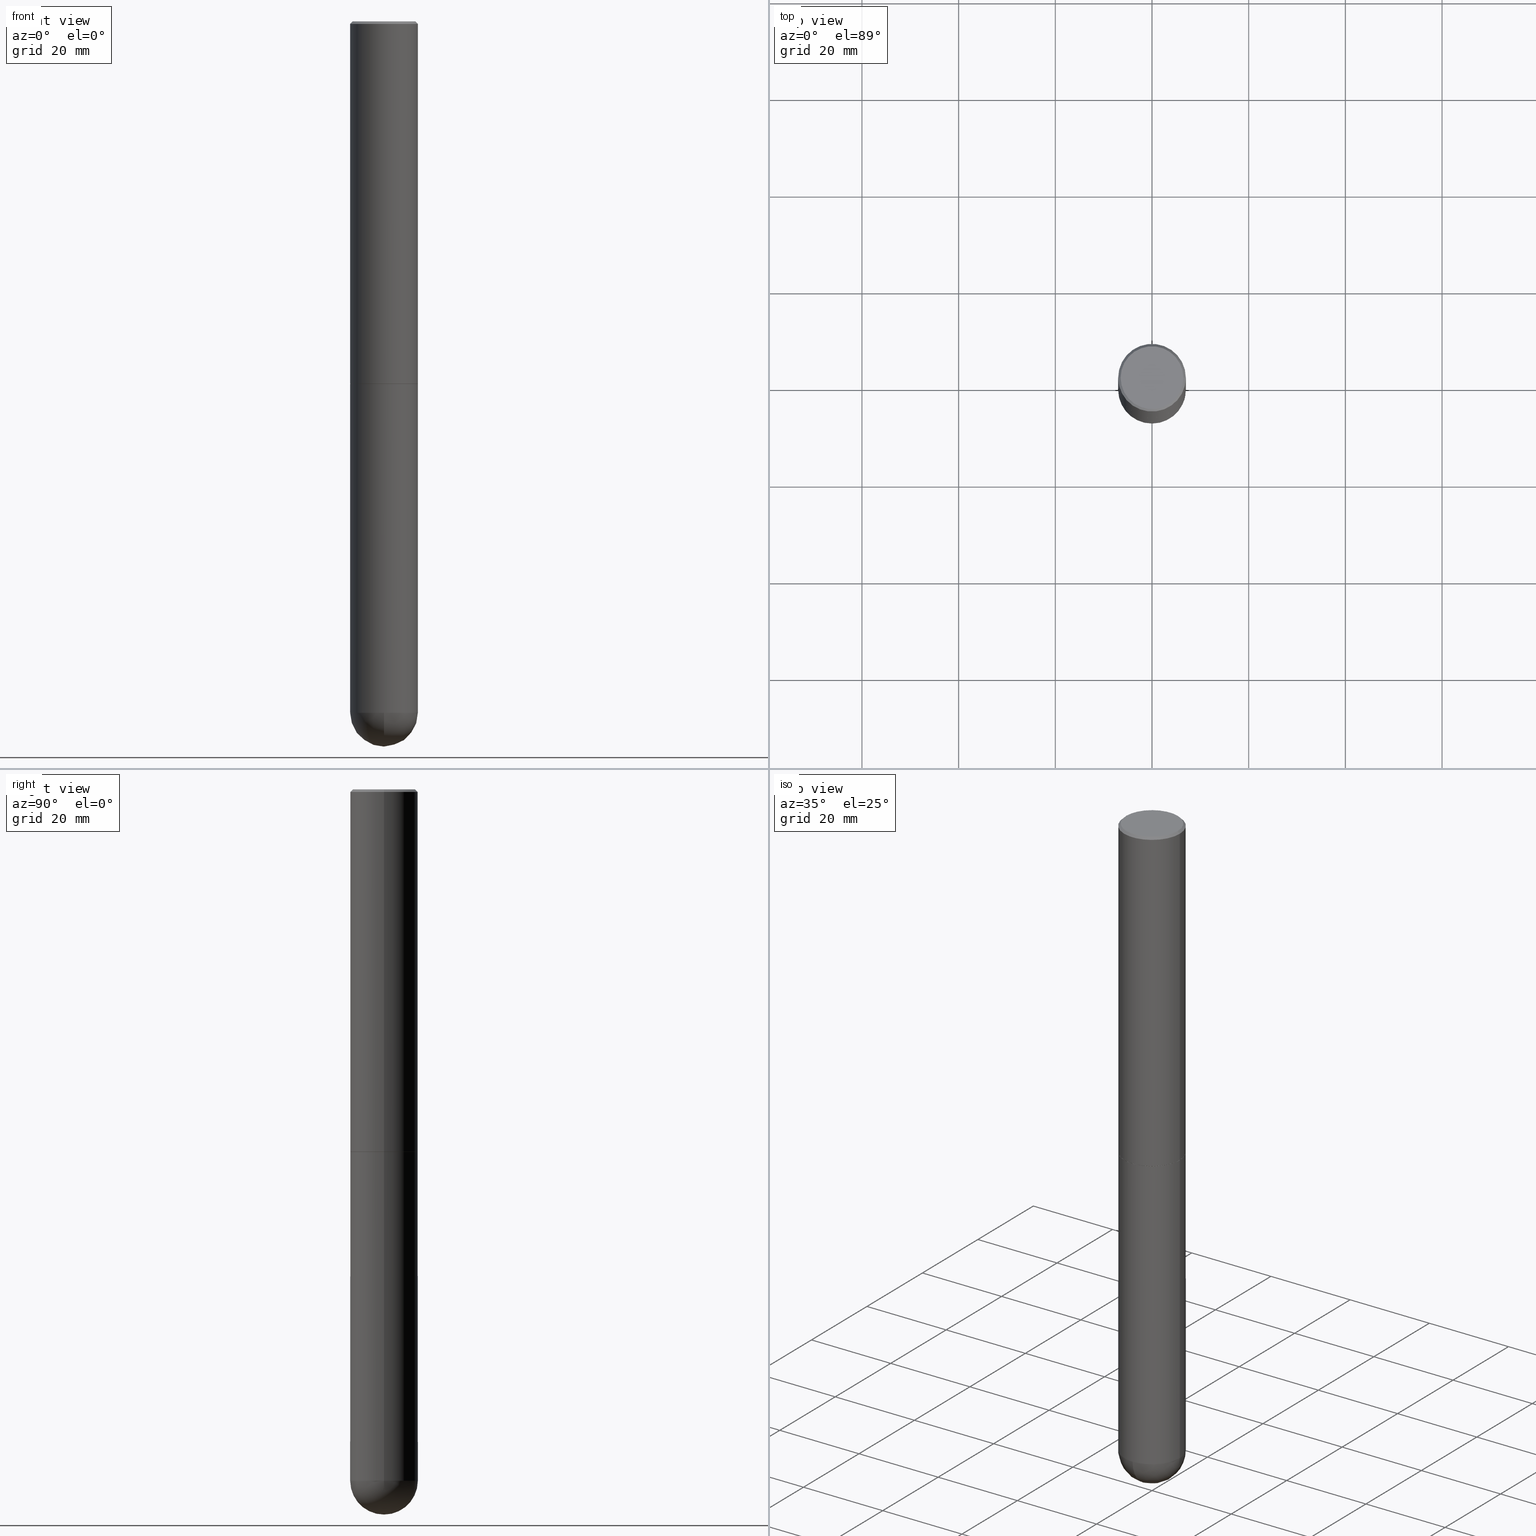
[diagram: canonical four-view strip — front | top / right | iso, engineering-drawing reading convention]
A machine part, canonical four-view strip (front | top / right | iso — engineering-drawing reading convention). The complete STEP part file that produces these views, byte-faithful:
ISO-10303-21;
HEADER;
FILE_DESCRIPTION (( 'STEP AP203' ),
    '1' );
FILE_NAME ('49591.STEP',
    '2024-04-10T12:29:19',
    ( '' ),
    ( '' ),
    'SwSTEP 2.0',
    'SolidWorks 2023',
    '' );
FILE_SCHEMA (( 'CONFIG_CONTROL_DESIGN' ));
ENDSEC;

DATA;
#1 = DIRECTION ( 'NONE',  ( -2.445468806185136597E-29, 3.491481338843145583E-15, 1.000000000000000000 ) ) ;
#2 = DIRECTION ( 'NONE',  ( 1.000000000000000000, -6.982962677686262766E-15, 0.000000000000000000 ) ) ;
#3 = EDGE_LOOP ( 'NONE', ( #60, #239, #39, #123 ) ) ;
#4 = CONICAL_SURFACE ( 'NONE', #355, 0.2756000000000000116, 0.7853981633974467247 ) ;
#5 = CYLINDRICAL_SURFACE ( 'NONE', #341, 0.2756000000000000671 ) ;
#6 = CARTESIAN_POINT ( 'NONE',  ( 0.2746000000000000107, -1.222681850049480396E-14, -2.952700000000000546 ) ) ;
#7 = EDGE_CURVE ( 'NONE', #316, #222, #266, .T. ) ;
#8 = CIRCLE ( 'NONE', #143, 0.2756000000000000671 ) ;
#9 = EDGE_CURVE ( 'NONE', #295, #367, #131, .T. ) ;
#10 = DIRECTION ( 'NONE',  ( 1.000000000000000000, -6.982962677686267499E-15, 4.876943595080614416E-29 ) ) ;
#11 = AXIS2_PLACEMENT_3D ( 'NONE', #343, #336, #54 ) ;
#12 = CC_DESIGN_PERSON_AND_ORGANIZATION_ASSIGNMENT ( #83, #17, ( #328 ) ) ;
#13 = COORDINATED_UNIVERSAL_TIME_OFFSET ( 5, 0, .BEHIND. ) ;
#14 = ORIENTED_EDGE ( 'NONE', *, *, #41, .F. ) ;
#15 = CIRCLE ( 'NONE', #119, 0.2756000000000000116 ) ;
#16 = VERTEX_POINT ( 'NONE', #103 ) ;
#17 = PERSON_AND_ORGANIZATION_ROLE ( 'design_owner' ) ;
#18 = SHAPE_DEFINITION_REPRESENTATION ( #166, #402 ) ;
#19 = DIRECTION ( 'NONE',  ( -1.000000000000000000, 6.982962677686265922E-15, -4.883557194083112901E-29 ) ) ;
#20 = DATE_TIME_ROLE ( 'creation_date' ) ;
#21 = PRODUCT_DEFINITION_FORMATION_WITH_SPECIFIED_SOURCE ( 'ANY', '', #328, .NOT_KNOWN. ) ;
#22 = EDGE_CURVE ( 'NONE', #386, #161, #96, .T. ) ;
#23 = VECTOR ( 'NONE', #358, 39.37007874015748143 ) ;
#24 = CARTESIAN_POINT ( 'NONE',  ( 0.2746000000000000107, -1.222681850049480396E-14, -2.952700000000000546 ) ) ;
#25 = APPROVAL ( #55, 'UNSPECIFIED' ) ;
#26 = LINE ( 'NONE', #149, #218 ) ;
#27 = CARTESIAN_POINT ( 'NONE',  ( -0.2756000000000000671, 1.958255779754836589E-15, -1.355658510874252287E-29 ) ) ;
#28 = LINE ( 'NONE', #244, #153 ) ;
#29 = ORIENTED_EDGE ( 'NONE', *, *, #47, .F. ) ;
#30 = DIRECTION ( 'NONE',  ( 1.000000000000000000, -6.982962677686267499E-15, 4.876176775795935793E-29 ) ) ;
#31 = SPHERICAL_SURFACE ( 'NONE', #364, 0.2756000000000000671 ) ;
#32 = CIRCLE ( 'NONE', #405, 0.2756000000000000116 ) ;
#33 = PLANE ( 'NONE',  #236 ) ;
#34 = ORIENTED_EDGE ( 'NONE', *, *, #279, .F. ) ;
#35 = APPLICATION_CONTEXT ( 'configuration controlled 3d designs of mechanical parts and assemblies' ) ;
#36 = ORIENTED_EDGE ( 'NONE', *, *, #198, .T. ) ;
#37 = DIRECTION ( 'NONE',  ( -2.445468806185136597E-29, 3.491481338843145583E-15, 1.000000000000000000 ) ) ;
#38 = DIRECTION ( 'NONE',  ( -2.445468806185136877E-29, 3.491481338843145188E-15, 1.000000000000000000 ) ) ;
#39 = ORIENTED_EDGE ( 'NONE', *, *, #286, .T. ) ;
#40 = APPROVAL_PERSON_ORGANIZATION ( #238, #128, #403 ) ;
#41 = EDGE_CURVE ( 'NONE', #367, #311, #32, .T. ) ;
#42 = ORIENTED_EDGE ( 'NONE', *, *, #279, .T. ) ;
#43 = DIRECTION ( 'NONE',  ( 1.000000000000000000, 0.000000000000000000, 0.000000000000000000 ) ) ;
#44 = FACE_OUTER_BOUND ( 'NONE', #340, .T. ) ;
#45 = CARTESIAN_POINT ( 'NONE',  ( 1.376774483194169922E-28, -1.965669078955302449E-14, -5.629900000000000126 ) ) ;
#46 = DIRECTION ( 'NONE',  ( -2.445468806185136597E-29, 3.491481338843145583E-15, 1.000000000000000000 ) ) ;
#47 = EDGE_CURVE ( 'NONE', #295, #376, #395, .T. ) ;
#48 = EDGE_CURVE ( 'NONE', #148, #91, #154, .T. ) ;
#49 = CIRCLE ( 'NONE', #307, 0.2756000000000000671 ) ;
#50 = DATE_AND_TIME ( #240, #241 ) ;
#51 = AXIS2_PLACEMENT_3D ( 'NONE', #197, #37, #230 ) ;
#52 = ORIENTED_EDGE ( 'NONE', *, *, #9, .F. ) ;
#53 = DATE_AND_TIME ( #334, #88 ) ;
#54 = DIRECTION ( 'NONE',  ( -1.000000000000000000, 6.982962677686267499E-15, 0.000000000000000000 ) ) ;
#55 = APPROVAL_STATUS ( 'not_yet_approved' ) ;
#56 = CC_DESIGN_PERSON_AND_ORGANIZATION_ASSIGNMENT ( #303, #139, ( #273 ) ) ;
#57 = AXIS2_PLACEMENT_3D ( 'NONE', #283, #255, #94 ) ;
#58 = EDGE_LOOP ( 'NONE', ( #138, #278, #319, #87 ) ) ;
#59 = LINE ( 'NONE', #24, #168 ) ;
#60 = ORIENTED_EDGE ( 'NONE', *, *, #86, .F. ) ;
#61 = VECTOR ( 'NONE', #268, 39.37007874015748143 ) ;
#62 = DIRECTION ( 'NONE',  ( -2.438088387897960049E-29, 3.491481338843145188E-15, 1.000000000000000000 ) ) ;
#63 = ORIENTED_EDGE ( 'NONE', *, *, #223, .F. ) ;
#64 = DIRECTION ( 'NONE',  ( -2.445468806185136597E-29, 3.491481338843145583E-15, 1.000000000000000000 ) ) ;
#65 = AXIS2_PLACEMENT_3D ( 'NONE', #101, #233, #357 ) ;
#66 = APPROVAL ( #80, 'UNSPECIFIED' ) ;
#67 = EDGE_CURVE ( 'NONE', #376, #295, #145, .T. ) ;
#68 = CARTESIAN_POINT ( 'NONE',  ( 0.000000000000000000, 0.000000000000000000, 0.000000000000000000 ) ) ;
#69 = ORIENTED_EDGE ( 'NONE', *, *, #9, .T. ) ;
#70 = DIRECTION ( 'NONE',  ( -2.445468806185136597E-29, 3.491481338843145583E-15, 1.000000000000000000 ) ) ;
#71 = DIRECTION ( 'NONE',  ( 1.000000000000000000, -6.982962677686267499E-15, 4.876176775795935793E-29 ) ) ;
#72 = CARTESIAN_POINT ( 'NONE',  ( -0.2756000000000002337, 1.958255779754837773E-15, -1.355658510874253128E-29 ) ) ;
#73 = DIRECTION ( 'NONE',  ( -2.445468806185136597E-29, 3.491481338843145583E-15, 1.000000000000000000 ) ) ;
#74 = APPLICATION_PROTOCOL_DEFINITION ( 'international standard', 'config_control_design', 1994, #77 ) ;
#75 = VERTEX_POINT ( 'NONE', #104 ) ;
#76 = PERSON_AND_ORGANIZATION_ROLE ( 'creator' ) ;
#77 = APPLICATION_CONTEXT ( 'configuration controlled 3d designs of mechanical parts and assemblies' ) ;
#78 = EDGE_LOOP ( 'NONE', ( #52, #186, #36, #14 ) ) ;
#79 = CONICAL_SURFACE ( 'NONE', #105, 0.2746000000000000107, 0.7853981633974995713 ) ;
#80 = APPROVAL_STATUS ( 'not_yet_approved' ) ;
#81 = AXIS2_PLACEMENT_3D ( 'NONE', #183, #179, #313 ) ;
#82 = ORIENTED_EDGE ( 'NONE', *, *, #48, .F. ) ;
#83 = PERSON_AND_ORGANIZATION ( #115, #375 ) ;
#84 = DIRECTION ( 'NONE',  ( -1.000000000000000000, 7.105427357601001070E-15, -4.926315508542082329E-29 ) ) ;
#85 = PLANE ( 'NONE',  #275 ) ;
#86 = EDGE_CURVE ( 'NONE', #75, #271, #260, .T. ) ;
#87 = ORIENTED_EDGE ( 'NONE', *, *, #41, .T. ) ;
#88 = LOCAL_TIME ( 8, 29, 19.00000000000000000, #360 ) ;
#89 = CLOSED_SHELL ( 'NONE', ( #155, #388, #245, #177, #199 ) ) ;
#90 = ORIENTED_EDGE ( 'NONE', *, *, #228, .T. ) ;
#91 = VERTEX_POINT ( 'NONE', #262 ) ;
#92 = DIRECTION ( 'NONE',  ( -2.445468806185136597E-29, 3.491481338843145583E-15, 1.000000000000000000 ) ) ;
#93 = ADVANCED_FACE ( 'NONE', ( #133 ), #121, .T. ) ;
#94 = DIRECTION ( 'NONE',  ( 1.000000000000000000, -6.982962677686262766E-15, 0.000000000000000000 ) ) ;
#95 = VERTEX_POINT ( 'NONE', #382 ) ;
#96 = CIRCLE ( 'NONE', #51, 0.2746000000000000107 ) ;
#97 = EDGE_CURVE ( 'NONE', #91, #148, #377, .T. ) ;
#98 = CARTESIAN_POINT ( 'NONE',  ( 7.218290275216666916E-29, -1.030580546786331359E-14, -2.951700000000000212 ) ) ;
#99 = DIRECTION ( 'NONE',  ( 1.000000000000000000, -6.982962677686264344E-15, 0.000000000000000000 ) ) ;
#100 = DIRECTION ( 'NONE',  ( -2.445468806185136597E-29, 3.491481338843145583E-15, 1.000000000000000000 ) ) ;
#101 = CARTESIAN_POINT ( 'NONE',  ( 7.218290275216666916E-29, -1.030580546786331359E-14, -2.951700000000000212 ) ) ;
#102 = AXIS2_PLACEMENT_3D ( 'NONE', #98, #258, #162 ) ;
#103 = CARTESIAN_POINT ( 'NONE',  ( 0.2756000000000000671, -1.690749838334792865E-14, -5.629900000000000126 ) ) ;
#104 = CARTESIAN_POINT ( 'NONE',  ( 0.2555999999999999384, -1.857063081596550031E-15, 9.390727478222178701E-17 ) ) ;
#105 = AXIS2_PLACEMENT_3D ( 'NONE', #330, #384, #187 ) ;
#106 = MECHANICAL_CONTEXT ( 'NONE', #35, 'mechanical' ) ;
#107 = EDGE_CURVE ( 'NONE', #361, #16, #132, .T. ) ;
#108 = ORIENTED_EDGE ( 'NONE', *, *, #223, .T. ) ;
#109 = ORIENTED_EDGE ( 'NONE', *, *, #198, .F. ) ;
#110 = PERSON_AND_ORGANIZATION ( #115, #375 ) ;
#111 = DIRECTION ( 'NONE',  ( -7.105427357601001859E-15, -1.000000000000000000, 0.000000000000000000 ) ) ;
#112 = CALENDAR_DATE ( 2024, 10, 4 ) ;
#113 = CARTESIAN_POINT ( 'NONE',  ( -0.2746000000000000107, -8.358146596804921801E-15, -2.952700000000000546 ) ) ;
#114 = CARTESIAN_POINT ( 'NONE',  ( 4.890937612370288923E-31, -6.982962677686312563E-17, -0.02000000000000006287 ) ) ;
#115 = PERSON ( 'UNSPECIFIED', 'UNSPECIFIED', 'UNSPECIFIED', ('UNSPECIFIED'), ('UNSPECIFIED'), ('UNSPECIFIED') ) ;
#116 = ORIENTED_EDGE ( 'NONE', *, *, #67, .F. ) ;
#117 = DIRECTION ( 'NONE',  ( 1.000000000000000000, -6.982962677686267499E-15, 4.876943595080614416E-29 ) ) ;
#118 = CIRCLE ( 'NONE', #270, 0.2756000000000000671 ) ;
#119 = AXIS2_PLACEMENT_3D ( 'NONE', #114, #276, #373 ) ;
#120 = AXIS2_PLACEMENT_3D ( 'NONE', #293, #62, #192 ) ;
#121 = CYLINDRICAL_SURFACE ( 'NONE', #201, 0.2756000000000002337 ) ;
#122 = FACE_OUTER_BOUND ( 'NONE', #349, .T. ) ;
#123 = ORIENTED_EDGE ( 'NONE', *, *, #300, .F. ) ;
#124 = CARTESIAN_POINT ( 'NONE',  ( -0.2756000000000000116, 1.854674887193472050E-15, -0.02000000000000006287 ) ) ;
#125 = FACE_OUTER_BOUND ( 'NONE', #331, .T. ) ;
#126 = ORIENTED_EDGE ( 'NONE', *, *, #167, .F. ) ;
#127 = AXIS2_PLACEMENT_3D ( 'NONE', #68, #1, #71 ) ;
#128 = APPROVAL ( #242, 'UNSPECIFIED' ) ;
#129 = CARTESIAN_POINT ( 'NONE',  ( 0.000000000000000000, 0.000000000000000000, 0.000000000000000000 ) ) ;
#130 = CC_DESIGN_APPROVAL ( #66, ( #265 ) ) ;
#131 = LINE ( 'NONE', #72, #23 ) ;
#132 = CIRCLE ( 'NONE', #309, 0.2756000000000000671 ) ;
#133 = FACE_OUTER_BOUND ( 'NONE', #78, .T. ) ;
#134 = MANIFOLD_SOLID_BREP ( 'Body-Move/Copy2[1]', #89 ) ;
#135 = PERSON_AND_ORGANIZATION ( #115, #375 ) ;
#136 = ORIENTED_EDGE ( 'NONE', *, *, #228, .F. ) ;
#137 = AXIS2_PLACEMENT_3D ( 'NONE', #220, #100, #356 ) ;
#138 = ORIENTED_EDGE ( 'NONE', *, *, #392, .F. ) ;
#139 = PERSON_AND_ORGANIZATION_ROLE ( 'creator' ) ;
#140 = LINE ( 'NONE', #141, #61 ) ;
#141 = CARTESIAN_POINT ( 'NONE',  ( 0.2756000000000000116, -1.960582874962697406E-15, -0.02000000000000006287 ) ) ;
#142 = CARTESIAN_POINT ( 'NONE',  ( -0.2555999999999999384, 1.819760073805041190E-15, 9.390727478219644485E-17 ) ) ;
#143 = AXIS2_PLACEMENT_3D ( 'NONE', #339, #84, #111 ) ;
#144 = CALENDAR_DATE ( 2024, 10, 4 ) ;
#145 = CIRCLE ( 'NONE', #65, 0.2756000000000004557 ) ;
#146 =( LENGTH_UNIT ( ) NAMED_UNIT ( * ) SI_UNIT ( $, .METRE. ) );
#147 = DIRECTION ( 'NONE',  ( -2.445468806185136597E-29, 3.491481338843145583E-15, 1.000000000000000000 ) ) ;
#148 = VERTEX_POINT ( 'NONE', #326 ) ;
#149 = CARTESIAN_POINT ( 'NONE',  ( -0.2756000000000000116, 1.854674887193472050E-15, -0.02000000000000006287 ) ) ;
#150 = CARTESIAN_POINT ( 'NONE',  ( -2.296473111537483331E-45, 3.278754974836984114E-31, 9.390727478220904197E-17 ) ) ;
#151 = DIRECTION ( 'NONE',  ( -2.445468806185136877E-29, 3.491481338843145188E-15, 1.000000000000000000 ) ) ;
#152 = CARTESIAN_POINT ( 'NONE',  ( -0.2756000000000000671, -1.302473808962275553E-14, -5.629900000000000126 ) ) ;
#153 = VECTOR ( 'NONE', #408, 39.37007874015748143 ) ;
#154 = CIRCLE ( 'NONE', #243, 0.2756000000000000116 ) ;
#155 = ADVANCED_FACE ( 'NONE', ( #44 ), #345, .T. ) ;
#156 = DIRECTION ( 'NONE',  ( 2.438088387897960049E-29, -3.491481338843145188E-15, -1.000000000000000000 ) ) ;
#157 = ADVANCED_FACE ( 'NONE', ( #229 ), #281, .F. ) ;
#158 = ORIENTED_EDGE ( 'NONE', *, *, #22, .T. ) ;
#159 = CC_DESIGN_SECURITY_CLASSIFICATION ( #265, ( #21 ) ) ;
#160 = FACE_OUTER_BOUND ( 'NONE', #246, .T. ) ;
#161 = VERTEX_POINT ( 'NONE', #6 ) ;
#162 = DIRECTION ( 'NONE',  ( 1.000000000000000000, -6.982962677686269077E-15, 0.000000000000000000 ) ) ;
#163 = AXIS2_PLACEMENT_3D ( 'NONE', #329, #190, #2 ) ;
#164 = DIRECTION ( 'NONE',  ( -2.445468806185136597E-29, 3.491481338843145583E-15, 1.000000000000000000 ) ) ;
#165 = ADVANCED_FACE ( 'NONE', ( #122 ), #195, .T. ) ;
#166 = PRODUCT_DEFINITION_SHAPE ( 'NONE', 'NONE',  #273 ) ;
#167 = EDGE_CURVE ( 'NONE', #161, #386, #194, .T. ) ;
#168 = VECTOR ( 'NONE', #247, 39.37007874015748143 ) ;
#169 = DATE_AND_TIME ( #332, #200 ) ;
#170 = APPROVAL_DATE_TIME ( #169, #128 ) ;
#171 = AXIS2_PLACEMENT_3D ( 'NONE', #320, #73, #99 ) ;
#172 = LINE ( 'NONE', #113, #234 ) ;
#173 =( CONVERSION_BASED_UNIT ( 'INCH', #335 ) LENGTH_UNIT ( ) NAMED_UNIT ( #263 ) );
#174 = DATE_AND_TIME ( #112, #354 ) ;
#175 = ADVANCED_FACE ( 'NONE', ( #412 ), #4, .T. ) ;
#176 = CARTESIAN_POINT ( 'NONE',  ( 1.784845260416609146E-15, 0.2555999999999999384, -8.454689928172032323E-16 ) ) ;
#177 = ADVANCED_FACE ( 'NONE', ( #257 ), #33, .F. ) ;
#178 = ORIENTED_EDGE ( 'NONE', *, *, #48, .T. ) ;
#179 = DIRECTION ( 'NONE',  ( 1.000000000000000000, -6.982962677686265922E-15, 4.883557194083112340E-29 ) ) ;
#180 = EDGE_LOOP ( 'NONE', ( #126, #383 ) ) ;
#181 = CARTESIAN_POINT ( 'NONE',  ( 0.2756000000000000116, -1.960582874962697406E-15, -0.02000000000000006287 ) ) ;
#182 = ORIENTED_EDGE ( 'NONE', *, *, #369, .T. ) ;
#183 = CARTESIAN_POINT ( 'NONE',  ( 1.343662505402781410E-28, -2.013087315769307636E-14, -5.629900000000000126 ) ) ;
#184 = LINE ( 'NONE', #27, #212 ) ;
#185 = AXIS2_PLACEMENT_3D ( 'NONE', #209, #206, #251 ) ;
#186 = ORIENTED_EDGE ( 'NONE', *, *, #47, .T. ) ;
#187 = DIRECTION ( 'NONE',  ( 1.000000000000000000, -6.982962677686262766E-15, 0.000000000000000000 ) ) ;
#188 = ADVANCED_FACE ( 'NONE', ( #125 ), #302, .T. ) ;
#189 = EDGE_LOOP ( 'NONE', ( #327, #404, #289, #217 ) ) ;
#190 = DIRECTION ( 'NONE',  ( -2.445468806185136597E-29, 3.491481338843145583E-15, 1.000000000000000000 ) ) ;
#191 = EDGE_LOOP ( 'NONE', ( #226, #362, #215, #252 ) ) ;
#192 = DIRECTION ( 'NONE',  ( 1.000000000000000000, -6.982962677686265922E-15, 4.876176775795935793E-29 ) ) ;
#193 = DIRECTION ( 'NONE',  ( -2.445468806185136597E-29, 3.491481338843145583E-15, 1.000000000000000000 ) ) ;
#194 = CIRCLE ( 'NONE', #163, 0.2746000000000000107 ) ;
#195 = CYLINDRICAL_SURFACE ( 'NONE', #137, 0.2756000000000002337 ) ;
#196 = DIRECTION ( 'NONE',  ( 1.000000000000000000, -6.982962677686264344E-15, 0.000000000000000000 ) ) ;
#197 = CARTESIAN_POINT ( 'NONE',  ( 7.220735744022853640E-29, -1.030929694920215659E-14, -2.952700000000000546 ) ) ;
#198 = EDGE_CURVE ( 'NONE', #376, #311, #254, .T. ) ;
#199 = ADVANCED_FACE ( 'NONE', ( #160 ), #5, .T. ) ;
#200 = LOCAL_TIME ( 8, 29, 19.00000000000000000, #203 ) ;
#201 = AXIS2_PLACEMENT_3D ( 'NONE', #231, #351, #385 ) ;
#202 = PERSON_AND_ORGANIZATION ( #115, #375 ) ;
#203 = COORDINATED_UNIVERSAL_TIME_OFFSET ( 5, 0, .BEHIND. ) ;
#204 = LOCAL_TIME ( 8, 29, 19.00000000000000000, #298 ) ;
#205 = PERSON_AND_ORGANIZATION ( #115, #375 ) ;
#206 = DIRECTION ( 'NONE',  ( -1.000000000000000000, 6.982962677686265922E-15, -4.883557194083112901E-29 ) ) ;
#207 = FACE_OUTER_BOUND ( 'NONE', #58, .T. ) ;
#208 = APPROVAL_ROLE ( '' ) ;
#209 = CARTESIAN_POINT ( 'NONE',  ( 1.343662505402781410E-28, -2.013087315769307636E-14, -5.629900000000000126 ) ) ;
#210 = EDGE_CURVE ( 'NONE', #271, #75, #401, .T. ) ;
#211 = ORIENTED_EDGE ( 'NONE', *, *, #167, .T. ) ;
#212 = VECTOR ( 'NONE', #151, 39.37007874015748143 ) ;
#213 = CC_DESIGN_PERSON_AND_ORGANIZATION_ASSIGNMENT ( #110, #363, ( #21 ) ) ;
#214 = DIRECTION ( 'NONE',  ( 1.000000000000000000, -6.982962677686264344E-15, 0.000000000000000000 ) ) ;
#215 = ORIENTED_EDGE ( 'NONE', *, *, #369, .F. ) ;
#216 = ORIENTED_EDGE ( 'NONE', *, *, #97, .T. ) ;
#217 = ORIENTED_EDGE ( 'NONE', *, *, #107, .F. ) ;
#218 = VECTOR ( 'NONE', #410, 39.37007874015748143 ) ;
#219 = UNCERTAINTY_MEASURE_WITH_UNIT (LENGTH_MEASURE( 1.000000000000000082E-05 ), #173, 'distance_accuracy_value', 'NONE');
#220 = CARTESIAN_POINT ( 'NONE',  ( 0.000000000000000000, 0.000000000000000000, 0.000000000000000000 ) ) ;
#221 = AXIS2_PLACEMENT_3D ( 'NONE', #297, #397, #10 ) ;
#222 = VERTEX_POINT ( 'NONE', #152 ) ;
#223 = EDGE_CURVE ( 'NONE', #222, #91, #184, .T. ) ;
#224 = CARTESIAN_POINT ( 'NONE',  ( 0.000000000000000000, 0.000000000000000000, 0.000000000000000000 ) ) ;
#225 = CARTESIAN_POINT ( 'NONE',  ( 7.220735744022852519E-29, -1.030929694920215502E-14, -2.952700000000000102 ) ) ;
#226 = ORIENTED_EDGE ( 'NONE', *, *, #232, .F. ) ;
#227 = DIRECTION ( 'NONE',  ( 1.000000000000000000, -6.982962677686265922E-15, 0.000000000000000000 ) ) ;
#228 = EDGE_CURVE ( 'NONE', #386, #295, #172, .T. ) ;
#229 = FACE_OUTER_BOUND ( 'NONE', #180, .T. ) ;
#230 = DIRECTION ( 'NONE',  ( 1.000000000000000000, -6.982962677686262766E-15, 0.000000000000000000 ) ) ;
#231 = CARTESIAN_POINT ( 'NONE',  ( 0.000000000000000000, 0.000000000000000000, 0.000000000000000000 ) ) ;
#232 = EDGE_CURVE ( 'NONE', #95, #316, #280, .T. ) ;
#233 = DIRECTION ( 'NONE',  ( -2.445468806185136597E-29, 3.491481338843145583E-15, 1.000000000000000000 ) ) ;
#234 = VECTOR ( 'NONE', #378, 39.37007874015748143 ) ;
#235 = CONICAL_SURFACE ( 'NONE', #11, 0.2756000000000000116, 0.7853981633974467247 ) ;
#236 = AXIS2_PLACEMENT_3D ( 'NONE', #391, #156, #353 ) ;
#237 = APPROVAL_ROLE ( '' ) ;
#238 = PERSON_AND_ORGANIZATION ( #115, #375 ) ;
#239 = ORIENTED_EDGE ( 'NONE', *, *, #392, .T. ) ;
#240 = CALENDAR_DATE ( 2024, 10, 4 ) ;
#241 = LOCAL_TIME ( 8, 29, 19.00000000000000000, #13 ) ;
#242 = APPROVAL_STATUS ( 'not_yet_approved' ) ;
#243 = AXIS2_PLACEMENT_3D ( 'NONE', #291, #46, #227 ) ;
#244 = CARTESIAN_POINT ( 'NONE',  ( 0.2756000000000000671, -1.924504513970335743E-15, 1.343874319409360268E-29 ) ) ;
#245 = ADVANCED_FACE ( 'NONE', ( #381 ), #31, .T. ) ;
#246 = EDGE_LOOP ( 'NONE', ( #63, #182, #380, #299, #248 ) ) ;
#247 = DIRECTION ( 'NONE',  ( 0.7071067811865837660, -2.468850131082636503E-15, 0.7071067811865112684 ) ) ;
#248 = ORIENTED_EDGE ( 'NONE', *, *, #97, .F. ) ;
#249 = CARTESIAN_POINT ( 'NONE',  ( 1.343662505402781410E-28, -2.013087315769307636E-14, -5.629900000000000126 ) ) ;
#250 = CC_DESIGN_APPROVAL ( #25, ( #21 ) ) ;
#251 = DIRECTION ( 'NONE',  ( 6.982962677686265922E-15, 1.000000000000000000, -3.964946289788479319E-15 ) ) ;
#252 = ORIENTED_EDGE ( 'NONE', *, *, #7, .F. ) ;
#253 = APPLICATION_PROTOCOL_DEFINITION ( 'international standard', 'config_control_design', 1994, #35 ) ;
#254 = LINE ( 'NONE', #321, #287 ) ;
#255 = DIRECTION ( 'NONE',  ( -2.445468806185136597E-29, 3.491481338843145583E-15, 1.000000000000000000 ) ) ;
#256 = CC_DESIGN_PERSON_AND_ORGANIZATION_ASSIGNMENT ( #202, #264, ( #265 ) ) ;
#257 = FACE_OUTER_BOUND ( 'NONE', #346, .T. ) ;
#258 = DIRECTION ( 'NONE',  ( -2.445468806185136597E-29, 3.491481338843145583E-15, 1.000000000000000000 ) ) ;
#259 = AXIS2_PLACEMENT_3D ( 'NONE', #224, #325, #43 ) ;
#260 = CIRCLE ( 'NONE', #221, 0.2555999999999999384 ) ;
#261 = ADVANCED_FACE ( 'NONE', ( #207 ), #235, .T. ) ;
#262 = CARTESIAN_POINT ( 'NONE',  ( -0.2756000000000000116, -1.302473808962275237E-14, -2.952700000000000102 ) ) ;
#263 = DIMENSIONAL_EXPONENTS ( 1.000000000000000000, 0.000000000000000000, 0.000000000000000000, 0.000000000000000000, 0.000000000000000000, 0.000000000000000000, 0.000000000000000000 ) ;
#264 = PERSON_AND_ORGANIZATION_ROLE ( 'classification_officer' ) ;
#265 = SECURITY_CLASSIFICATION ( '', '', #306 ) ;
#266 = CIRCLE ( 'NONE', #171, 0.2756000000000000671 ) ;
#267 = MANIFOLD_SOLID_BREP ( 'Body-Move/Copy2[2]', #347 ) ;
#268 = DIRECTION ( 'NONE',  ( 0.7071067811865464625, -7.319954787623252890E-15, -0.7071067811865486830 ) ) ;
#269 =( NAMED_UNIT ( * ) PLANE_ANGLE_UNIT ( ) SI_UNIT ( $, .RADIAN. ) );
#270 = AXIS2_PLACEMENT_3D ( 'NONE', #45, #64, #196 ) ;
#271 = VERTEX_POINT ( 'NONE', #142 ) ;
#272 = DATE_AND_TIME ( #144, #204 ) ;
#273 = PRODUCT_DEFINITION ( 'UNKNOWN', '', #21, #312 ) ;
#274 = DIRECTION ( 'NONE',  ( 6.982962677686265922E-15, 1.000000000000000000, -3.964946289788479319E-15 ) ) ;
#275 = AXIS2_PLACEMENT_3D ( 'NONE', #176, #308, #409 ) ;
#276 = DIRECTION ( 'NONE',  ( -2.445468806185136597E-29, 3.491481338843145583E-15, 1.000000000000000000 ) ) ;
#277 = CARTESIAN_POINT ( 'NONE',  ( 0.2756000000000004557, -1.223030998183365327E-14, -2.951700000000000212 ) ) ;
#278 = ORIENTED_EDGE ( 'NONE', *, *, #210, .F. ) ;
#279 = EDGE_CURVE ( 'NONE', #161, #376, #59, .T. ) ;
#280 = CIRCLE ( 'NONE', #81, 0.2756000000000000671 ) ;
#281 = PLANE ( 'NONE',  #120 ) ;
#282 = ADVANCED_FACE ( 'NONE', ( #368 ), #85, .F. ) ;
#283 = CARTESIAN_POINT ( 'NONE',  ( 7.220735744022853640E-29, -1.030929694920215659E-14, -2.952700000000000546 ) ) ;
#284 = DIRECTION ( 'NONE',  ( 1.000000000000000000, -6.982962677686265922E-15, 0.000000000000000000 ) ) ;
#285 = ORIENTED_EDGE ( 'NONE', *, *, #286, .F. ) ;
#286 = EDGE_CURVE ( 'NONE', #311, #367, #15, .T. ) ;
#287 = VECTOR ( 'NONE', #38, 39.37007874015748143 ) ;
#288 = DIRECTION ( 'NONE',  ( 1.000000000000000000, -6.982962677686264344E-15, 0.000000000000000000 ) ) ;
#289 = ORIENTED_EDGE ( 'NONE', *, *, #338, .F. ) ;
#290 = CARTESIAN_POINT ( 'NONE',  ( 1.924504513970471427E-15, 0.2755999999999801942, -5.629900000000001015 ) ) ;
#291 = CARTESIAN_POINT ( 'NONE',  ( 7.220735744022852519E-29, -1.030929694920215502E-14, -2.952700000000000102 ) ) ;
#292 = CC_DESIGN_PERSON_AND_ORGANIZATION_ASSIGNMENT ( #205, #76, ( #21 ) ) ;
#293 = CARTESIAN_POINT ( 'NONE',  ( 7.220735744022853640E-29, -1.030929694920215659E-14, -2.952700000000000546 ) ) ;
#294 = FACE_OUTER_BOUND ( 'NONE', #372, .T. ) ;
#295 = VERTEX_POINT ( 'NONE', #310 ) ;
#296 = APPROVAL_PERSON_ORGANIZATION ( #135, #25, #208 ) ;
#297 = CARTESIAN_POINT ( 'NONE',  ( -2.296473111537483331E-45, 3.278754974836984114E-31, 9.390727478220904197E-17 ) ) ;
#298 = COORDINATED_UNIVERSAL_TIME_OFFSET ( 5, 0, .BEHIND. ) ;
#299 = ORIENTED_EDGE ( 'NONE', *, *, #374, .T. ) ;
#300 = EDGE_CURVE ( 'NONE', #271, #367, #26, .T. ) ;
#301 = DIRECTION ( 'NONE',  ( -2.445468806185136597E-29, 3.491481338843145583E-15, 1.000000000000000000 ) ) ;
#302 = CONICAL_SURFACE ( 'NONE', #57, 0.2746000000000000107, 0.7853981633974995713 ) ;
#303 = PERSON_AND_ORGANIZATION ( #115, #375 ) ;
#304 = ORIENTED_EDGE ( 'NONE', *, *, #210, .T. ) ;
#305 = APPROVAL_DATE_TIME ( #53, #66 ) ;
#306 = SECURITY_CLASSIFICATION_LEVEL ( 'unclassified' ) ;
#307 = AXIS2_PLACEMENT_3D ( 'NONE', #387, #301, #214 ) ;
#308 = DIRECTION ( 'NONE',  ( 2.438088387897960049E-29, -3.491481338843145188E-15, -1.000000000000000000 ) ) ;
#309 = AXIS2_PLACEMENT_3D ( 'NONE', #393, #164, #288 ) ;
#310 = CARTESIAN_POINT ( 'NONE',  ( -0.2756000000000004002, -3.229561767565246331E-15, -2.951700000000000212 ) ) ;
#311 = VERTEX_POINT ( 'NONE', #181 ) ;
#312 = DESIGN_CONTEXT ( 'detailed design', #77, 'design' ) ;
#313 = DIRECTION ( 'NONE',  ( 6.982962677686267499E-15, 1.000000000000000000, 0.000000000000000000 ) ) ;
#314 =( GEOMETRIC_REPRESENTATION_CONTEXT ( 3 ) GLOBAL_UNCERTAINTY_ASSIGNED_CONTEXT ( ( #219 ) ) GLOBAL_UNIT_ASSIGNED_CONTEXT ( ( #173, #269, #371 ) ) REPRESENTATION_CONTEXT ( 'NONE', 'WORKASPACE' ) );
#315 = DIRECTION ( 'NONE',  ( -1.000000000000000000, 6.982962677686267499E-15, 0.000000000000000000 ) ) ;
#316 = VERTEX_POINT ( 'NONE', #290 ) ;
#317 = CARTESIAN_POINT ( 'NONE',  ( -1.958255779754700116E-15, -0.2756000000000199956, -5.629899999999999238 ) ) ;
#318 = CARTESIAN_POINT ( 'NONE',  ( 4.890937612370288923E-31, -6.982962677686312563E-17, -0.02000000000000006287 ) ) ;
#319 = ORIENTED_EDGE ( 'NONE', *, *, #300, .T. ) ;
#320 = CARTESIAN_POINT ( 'NONE',  ( 1.376774483194169922E-28, -1.965669078955302449E-14, -5.629900000000000126 ) ) ;
#321 = CARTESIAN_POINT ( 'NONE',  ( 0.2756000000000002337, -1.924504513970336926E-15, 1.343874319409361109E-29 ) ) ;
#322 = ORIENTED_EDGE ( 'NONE', *, *, #7, .T. ) ;
#323 = ORIENTED_EDGE ( 'NONE', *, *, #86, .T. ) ;
#324 = CC_DESIGN_APPROVAL ( #128, ( #273 ) ) ;
#325 = DIRECTION ( 'NONE',  ( 0.000000000000000000, 0.000000000000000000, 1.000000000000000000 ) ) ;
#326 = CARTESIAN_POINT ( 'NONE',  ( 0.2756000000000000116, -1.223380146317248997E-14, -2.952700000000000102 ) ) ;
#327 = ORIENTED_EDGE ( 'NONE', *, *, #398, .F. ) ;
#328 = PRODUCT ( '49591', '49591', '', ( #106 ) ) ;
#329 = CARTESIAN_POINT ( 'NONE',  ( 7.220735744022853640E-29, -1.030929694920215659E-14, -2.952700000000000546 ) ) ;
#330 = CARTESIAN_POINT ( 'NONE',  ( 7.220735744022853640E-29, -1.030929694920215659E-14, -2.952700000000000546 ) ) ;
#331 = EDGE_LOOP ( 'NONE', ( #211, #90, #116, #34 ) ) ;
#332 = CALENDAR_DATE ( 2024, 10, 4 ) ;
#333 = ORIENTED_EDGE ( 'NONE', *, *, #338, .T. ) ;
#334 = CALENDAR_DATE ( 2024, 10, 4 ) ;
#335 = LENGTH_MEASURE_WITH_UNIT ( LENGTH_MEASURE( 0.02539999999999999897 ), #146 );
#336 = DIRECTION ( 'NONE',  ( 2.445468806185136597E-29, -3.491481338843145583E-15, -1.000000000000000000 ) ) ;
#337 = COORDINATED_UNIVERSAL_TIME_OFFSET ( 5, 0, .BEHIND. ) ;
#338 = EDGE_CURVE ( 'NONE', #16, #316, #118, .T. ) ;
#339 = CARTESIAN_POINT ( 'NONE',  ( 1.343662505402781410E-28, -2.013087315769307636E-14, -5.629900000000000126 ) ) ;
#340 = EDGE_LOOP ( 'NONE', ( #322, #108, #82, #352, #333 ) ) ;
#341 = AXIS2_PLACEMENT_3D ( 'NONE', #129, #70, #30 ) ;
#342 = FACE_OUTER_BOUND ( 'NONE', #191, .T. ) ;
#343 = CARTESIAN_POINT ( 'NONE',  ( 4.890937612370288923E-31, -6.982962677686312563E-17, -0.02000000000000006287 ) ) ;
#344 = ORIENTED_EDGE ( 'NONE', *, *, #67, .T. ) ;
#345 = CYLINDRICAL_SURFACE ( 'NONE', #127, 0.2756000000000000671 ) ;
#346 = EDGE_LOOP ( 'NONE', ( #178, #216 ) ) ;
#347 = CLOSED_SHELL ( 'NONE', ( #188, #165, #175, #261, #93, #359, #157, #282 ) ) ;
#348 = DIRECTION ( 'NONE',  ( 2.445468806185136597E-29, -3.491481338843145583E-15, -1.000000000000000000 ) ) ;
#349 = EDGE_LOOP ( 'NONE', ( #344, #69, #285, #109 ) ) ;
#350 = CARTESIAN_POINT ( 'NONE',  ( 4.890937612370288923E-31, -6.982962677686312563E-17, -0.02000000000000006287 ) ) ;
#351 = DIRECTION ( 'NONE',  ( -2.445468806185136597E-29, 3.491481338843145583E-15, 1.000000000000000000 ) ) ;
#352 = ORIENTED_EDGE ( 'NONE', *, *, #374, .F. ) ;
#353 = DIRECTION ( 'NONE',  ( -1.000000000000000000, 6.982962677686265922E-15, -4.876176775795935793E-29 ) ) ;
#354 = LOCAL_TIME ( 8, 29, 19.00000000000000000, #337 ) ;
#355 = AXIS2_PLACEMENT_3D ( 'NONE', #318, #348, #315 ) ;
#356 = DIRECTION ( 'NONE',  ( 1.000000000000000000, -6.982962677686267499E-15, 4.876176775795935793E-29 ) ) ;
#357 = DIRECTION ( 'NONE',  ( 1.000000000000000000, -6.982962677686269077E-15, 0.000000000000000000 ) ) ;
#358 = DIRECTION ( 'NONE',  ( -2.445468806185136877E-29, 3.491481338843145188E-15, 1.000000000000000000 ) ) ;
#359 = ADVANCED_FACE ( 'NONE', ( #294 ), #79, .T. ) ;
#360 = COORDINATED_UNIVERSAL_TIME_OFFSET ( 5, 0, .BEHIND. ) ;
#361 = VERTEX_POINT ( 'NONE', #317 ) ;
#362 = ORIENTED_EDGE ( 'NONE', *, *, #398, .T. ) ;
#363 = PERSON_AND_ORGANIZATION_ROLE ( 'design_supplier' ) ;
#364 = AXIS2_PLACEMENT_3D ( 'NONE', #249, #19, #274 ) ;
#365 = APPROVAL_DATE_TIME ( #174, #25 ) ;
#366 = CARTESIAN_POINT ( 'NONE',  ( -0.2746000000000000107, -8.352848142456696244E-15, -2.952700000000000546 ) ) ;
#367 = VERTEX_POINT ( 'NONE', #124 ) ;
#368 = FACE_OUTER_BOUND ( 'NONE', #396, .T. ) ;
#369 = EDGE_CURVE ( 'NONE', #222, #361, #49, .T. ) ;
#370 = CC_DESIGN_DATE_AND_TIME_ASSIGNMENT ( #272, #407, ( #265 ) ) ;
#371 =( NAMED_UNIT ( * ) SI_UNIT ( $, .STERADIAN. ) SOLID_ANGLE_UNIT ( ) );
#372 = EDGE_LOOP ( 'NONE', ( #136, #158, #42, #29 ) ) ;
#373 = DIRECTION ( 'NONE',  ( 1.000000000000000000, -6.982962677686267499E-15, 0.000000000000000000 ) ) ;
#374 = EDGE_CURVE ( 'NONE', #16, #148, #28, .T. ) ;
#375 = ORGANIZATION ( 'UNSPECIFIED', 'UNSPECIFIED', '' ) ;
#376 = VERTEX_POINT ( 'NONE', #277 ) ;
#377 = CIRCLE ( 'NONE', #389, 0.2756000000000000116 ) ;
#378 = DIRECTION ( 'NONE',  ( -0.7071067811865837660, 7.493145998870485111E-15, 0.7071067811865112684 ) ) ;
#379 = SPHERICAL_SURFACE ( 'NONE', #185, 0.2756000000000000671 ) ;
#380 = ORIENTED_EDGE ( 'NONE', *, *, #107, .T. ) ;
#381 = FACE_OUTER_BOUND ( 'NONE', #189, .T. ) ;
#382 = CARTESIAN_POINT ( 'NONE',  ( 1.412238044847732931E-28, -2.107624978178599697E-14, -5.905499999999999972 ) ) ;
#383 = ORIENTED_EDGE ( 'NONE', *, *, #22, .F. ) ;
#384 = DIRECTION ( 'NONE',  ( -2.445468806185136597E-29, 3.491481338843145583E-15, 1.000000000000000000 ) ) ;
#385 = DIRECTION ( 'NONE',  ( 1.000000000000000000, -6.982962677686267499E-15, 4.876176775795935793E-29 ) ) ;
#386 = VERTEX_POINT ( 'NONE', #366 ) ;
#387 = CARTESIAN_POINT ( 'NONE',  ( 1.376774483194169922E-28, -1.965669078955302449E-14, -5.629900000000000126 ) ) ;
#388 = ADVANCED_FACE ( 'NONE', ( #342 ), #379, .T. ) ;
#389 = AXIS2_PLACEMENT_3D ( 'NONE', #225, #92, #284 ) ;
#390 = DIRECTION ( 'NONE',  ( 1.000000000000000000, -6.982962677686267499E-15, 0.000000000000000000 ) ) ;
#391 = CARTESIAN_POINT ( 'NONE',  ( 1.924504513970407529E-15, 0.2755999999999896866, -2.952700000000000990 ) ) ;
#392 = EDGE_CURVE ( 'NONE', #75, #311, #140, .T. ) ;
#393 = CARTESIAN_POINT ( 'NONE',  ( 1.376774483194169922E-28, -1.965669078955302449E-14, -5.629900000000000126 ) ) ;
#394 = APPROVAL_PERSON_ORGANIZATION ( #400, #66, #237 ) ;
#395 = CIRCLE ( 'NONE', #102, 0.2756000000000004557 ) ;
#396 = EDGE_LOOP ( 'NONE', ( #304, #323 ) ) ;
#397 = DIRECTION ( 'NONE',  ( -2.445468806185136597E-29, 3.491481338843145583E-15, 1.000000000000000000 ) ) ;
#398 = EDGE_CURVE ( 'NONE', #95, #361, #8, .T. ) ;
#399 = CC_DESIGN_DATE_AND_TIME_ASSIGNMENT ( #50, #20, ( #273 ) ) ;
#400 = PERSON_AND_ORGANIZATION ( #115, #375 ) ;
#401 = CIRCLE ( 'NONE', #411, 0.2555999999999999384 ) ;
#402 = ADVANCED_BREP_SHAPE_REPRESENTATION ( '49591', ( #134, #267, #259 ), #314 ) ;
#403 = APPROVAL_ROLE ( '' ) ;
#404 = ORIENTED_EDGE ( 'NONE', *, *, #232, .T. ) ;
#405 = AXIS2_PLACEMENT_3D ( 'NONE', #350, #193, #390 ) ;
#406 = PRODUCT_RELATED_PRODUCT_CATEGORY ( 'detail', '', ( #328 ) ) ;
#407 = DATE_TIME_ROLE ( 'classification_date' ) ;
#408 = DIRECTION ( 'NONE',  ( -2.445468806185136877E-29, 3.491481338843145188E-15, 1.000000000000000000 ) ) ;
#409 = DIRECTION ( 'NONE',  ( -1.000000000000000000, 6.982962677686265922E-15, -4.876176775795935793E-29 ) ) ;
#410 = DIRECTION ( 'NONE',  ( -0.7071067811865464625, 2.468850131082245228E-15, -0.7071067811865486830 ) ) ;
#411 = AXIS2_PLACEMENT_3D ( 'NONE', #150, #147, #117 ) ;
#412 = FACE_OUTER_BOUND ( 'NONE', #3, .T. ) ;
ENDSEC;
END-ISO-10303-21;
